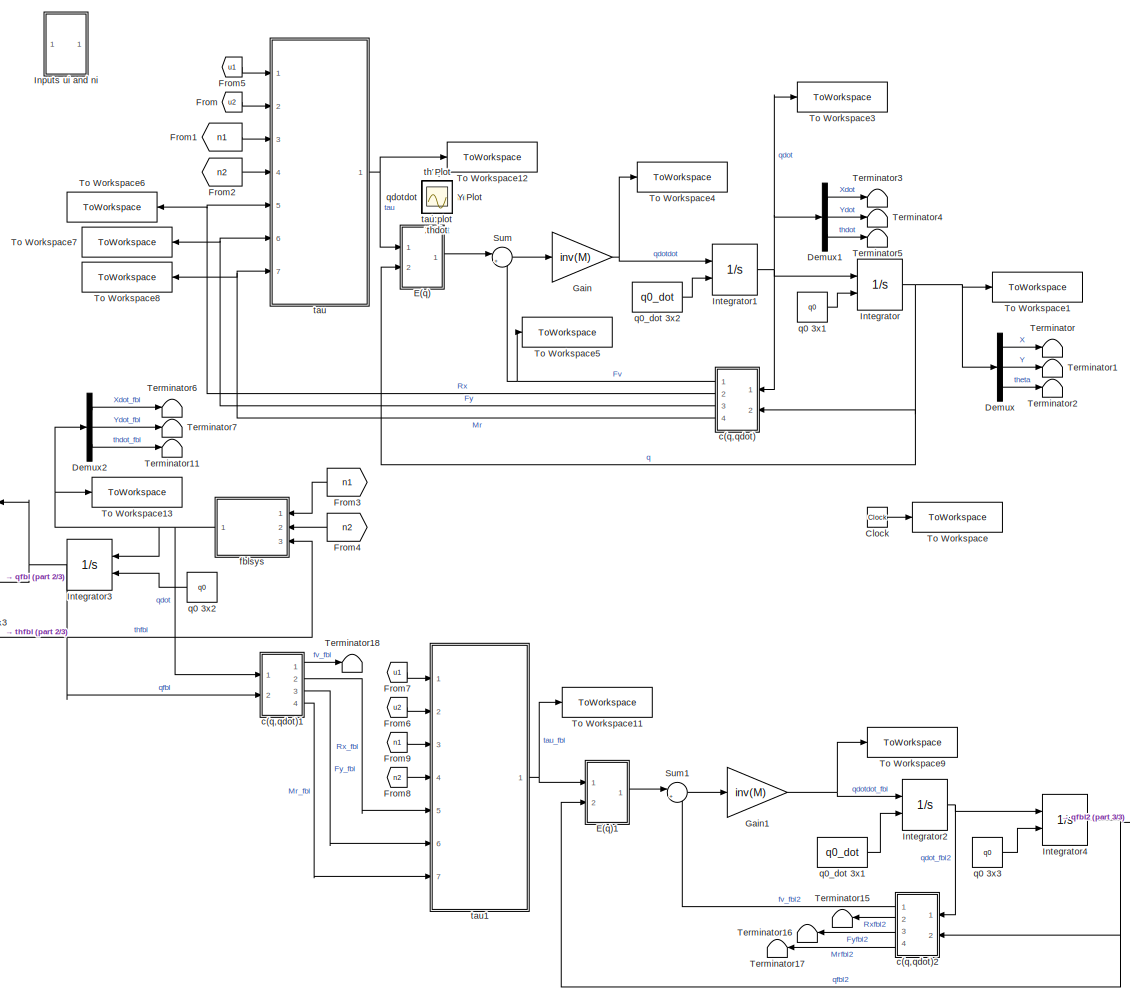
[diagram: root canvas - part 1/3, most of the canvas]
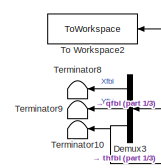
[diagram: root canvas - part 2/3, middle left region]
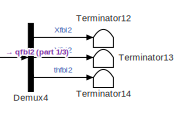
[diagram: root canvas - part 3/3, bottom right region]
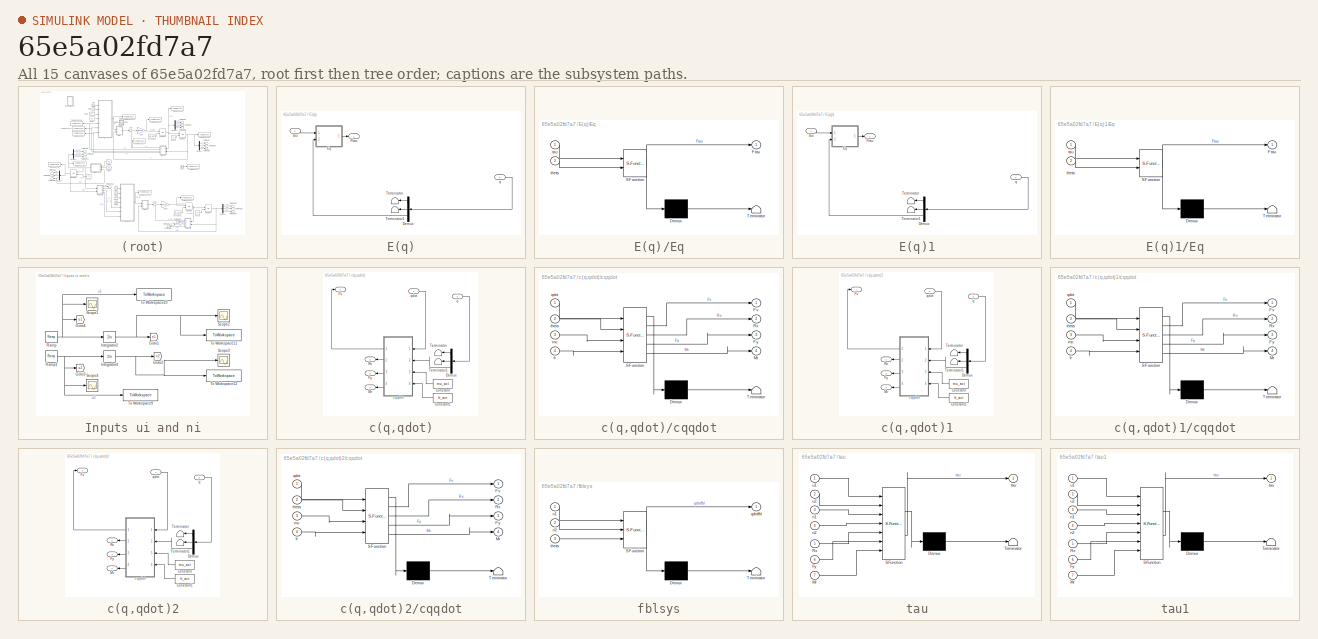
[diagram: thumbnail index - all 15 canvases of the model, root first then tree order]
MODEL slx_65e5a02fd7a7
KIND model
CONFIG AbsTol = auto
CONFIG EnableMultiTasking = off
CONFIG FixedStep = auto
CONFIG MaxStep = auto
CONFIG MinStep = auto
CONFIG RelTol = 1e-6
CONFIG SampleTimeConstraint = Unconstrained
CONFIG SolverName = VariableStepAuto
CONFIG StartTime = 0.0
CONFIG StopTime = 1
BLOCK [Clock] Clock
BLOCK [Demux] Demux
  Outputs = 3
  Ports = [1, 3]
BLOCK [Demux] Demux1
  Outputs = 3
  Ports = [1, 3]
BLOCK [Demux] Demux2
  Outputs = 3
  Ports = [1, 3]
BLOCK [Demux] Demux3
  Outputs = 3
  Ports = [1, 3]
BLOCK [Demux] Demux4
  Outputs = 3
  Ports = [1, 3]
BLOCK [SubSystem] E(q)
  Ports = [2, 1]
  RequestExecContextInheritance = off
BLOCK [Demux] E(q)/Demux
  Outputs = 3
  Ports = [1, 3]
BLOCK [SubSystem] E(q)/Eq
  ErrorFcn = Stateflow.Translate.translate
  PermitHierarchicalResolution = ExplicitOnly
  Ports = [2, 1]
  RequestExecContextInheritance = off
  SFBlockType = MATLAB Function
  TreatAsAtomicUnit = on
BLOCK [Demux] E(q)/Eq/ Demux 
  Outputs = 1
  Ports = [1, 1]
BLOCK [S-Function] E(q)/Eq/ SFunction 
  EnableBusSupport = on
  FunctionName = sf_sfun
  Parameters = r,t
  PortCounts = [2 2]
  Ports = [2, 2]
  SFcnIsStateOwnerBlock = off
  SFunctionDeploymentMode = off
  Tag = Stateflow S-Function 1
BLOCK [Terminator] E(q)/Eq/ Terminator 
BLOCK [Outport] E(q)/Eq/Ftau
BLOCK [Inport] E(q)/Eq/tau
BLOCK [Inport] E(q)/Eq/theta
  Port = 2
BLOCK [Outport] E(q)/Ftau
BLOCK [Terminator] E(q)/Terminator
BLOCK [Terminator] E(q)/Terminator1
BLOCK [Inport] E(q)/q
  Port = 2
BLOCK [Inport] E(q)/tau
BLOCK [SubSystem] E(q)1
  Ports = [2, 1]
  RequestExecContextInheritance = off
BLOCK [Demux] E(q)1/Demux
  Outputs = 3
  Ports = [1, 3]
BLOCK [SubSystem] E(q)1/Eq
  ErrorFcn = Stateflow.Translate.translate
  PermitHierarchicalResolution = ExplicitOnly
  Ports = [2, 1]
  RequestExecContextInheritance = off
  SFBlockType = MATLAB Function
  TreatAsAtomicUnit = on
BLOCK [Demux] E(q)1/Eq/ Demux 
  Outputs = 1
  Ports = [1, 1]
BLOCK [S-Function] E(q)1/Eq/ SFunction 
  EnableBusSupport = on
  FunctionName = sf_sfun
  Parameters = r,t
  PortCounts = [2 2]
  Ports = [2, 2]
  SFcnIsStateOwnerBlock = off
  SFunctionDeploymentMode = off
  Tag = Stateflow S-Function 7
BLOCK [Terminator] E(q)1/Eq/ Terminator 
BLOCK [Outport] E(q)1/Eq/Ftau
BLOCK [Inport] E(q)1/Eq/tau
BLOCK [Inport] E(q)1/Eq/theta
  Port = 2
BLOCK [Outport] E(q)1/Ftau
BLOCK [Terminator] E(q)1/Terminator
BLOCK [Terminator] E(q)1/Terminator1
BLOCK [Inport] E(q)1/q
  Port = 2
BLOCK [Inport] E(q)1/tau
BLOCK [From] From
  GotoTag = u2
  TagVisibility = global
BLOCK [From] From1
  GotoTag = n1
  TagVisibility = global
BLOCK [From] From2
  GotoTag = n2
  TagVisibility = global
BLOCK [From] From3
  GotoTag = n1
  TagVisibility = global
BLOCK [From] From4
  GotoTag = n2
  TagVisibility = global
BLOCK [From] From5
  GotoTag = u1
  TagVisibility = global
BLOCK [From] From6
  GotoTag = u2
  TagVisibility = global
BLOCK [From] From7
  GotoTag = u1
  TagVisibility = global
BLOCK [From] From8
  GotoTag = n2
  TagVisibility = global
BLOCK [From] From9
  GotoTag = n1
  TagVisibility = global
BLOCK [Scope] Fv
  Floating = off
  IOType = viewer
  NumInputPorts = 1
  Ports = []
  ScopeSpecificationString = Simulink.scopes.TimeScopeBlockCfg('CurrentConfiguration', extmgr.ConfigurationSet(extmgr.Configuration('Core','General UI',true),extmgr.Configuration('Core','Source UI',true),extmgr.Configuration('Sources','WiredSimulink',true,'DataLoggingVariableName','ScopeData9'),extmgr.Configuration('Visuals','Time Domain',true,'SerializedDisplays',{struct('MinYLimReal','-563.85052','MaxYLimReal','214.37806','...<+1665ch>
BLOCK [Scope] Fy
  Floating = off
  IOType = viewer
  NumInputPorts = 1
  Ports = []
  ScopeSpecificationString = Simulink.scopes.TimeScopeBlockCfg('CurrentConfiguration', extmgr.ConfigurationSet(extmgr.Configuration('Core','General UI',true),extmgr.Configuration('Core','Source UI',true),extmgr.Configuration('Sources','WiredSimulink',true,'DataLoggingVariableName','ScopeData6'),extmgr.Configuration('Visuals','Time Domain',true,'SerializedDisplays',{struct('MinYLimReal','-220.4179','MaxYLimReal','24.49088','YL...<+1481ch>
BLOCK [Gain] Gain
  Gain = inv(M)
  Multiplication = Matrix(K*u) (u vector)
BLOCK [Gain] Gain1
  Gain = inv(M)
  Multiplication = Matrix(K*u) (u vector)
BLOCK [SubSystem] Inputs ui and ni
  Ports = []
  RequestExecContextInheritance = off
BLOCK [Goto] Inputs ui and ni/Goto1
  GotoTag = n1
  TagVisibility = global
BLOCK [Goto] Inputs ui and ni/Goto2
  GotoTag = n2
  TagVisibility = global
BLOCK [Goto] Inputs ui and ni/Goto3
  GotoTag = u2
  TagVisibility = global
BLOCK [Goto] Inputs ui and ni/Goto4
  GotoTag = u1
  TagVisibility = global
BLOCK [Integrator] Inputs ui and ni/Integrator2
  Ports = [1, 1]
BLOCK [Integrator] Inputs ui and ni/Integrator4
  Ports = [1, 1]
BLOCK [Reference] Inputs ui and ni/Ramp  REF=simulink/Sources/Ramp
  Ports = [0, 1]
  SourceBlock = simulink/Sources/Ramp
  SourceProductBaseCode = SL
  SourceType = Ramp
BLOCK [Reference] Inputs ui and ni/Ramp1  REF=simulink/Sources/Ramp
  Ports = [0, 1]
  SourceBlock = simulink/Sources/Ramp
  SourceProductBaseCode = SL
  SourceType = Ramp
BLOCK [Scope] Inputs ui and ni/Scope1
  Floating = off
  NumInputPorts = 1
  Ports = [1]
  ScopeSpecificationString = Simulink.scopes.TimeScopeBlockCfg('CurrentConfiguration', extmgr.ConfigurationSet(extmgr.Configuration('Core','General UI',true),extmgr.Configuration('Core','Source UI',true),extmgr.Configuration('Sources','WiredSimulink',true,'DataLoggingVariableName','ScopeData3'),extmgr.Configuration('Visuals','Time Domain',true,'SerializedDisplays',{struct('MinYLimReal','-0.05','MaxYLimReal','0.45','YLabelReal...<+1385ch>
BLOCK [Scope] Inputs ui and ni/Scope2
  Floating = off
  NumInputPorts = 1
  Ports = [1]
  ScopeSpecificationString = Simulink.scopes.TimeScopeBlockCfg('CurrentConfiguration', extmgr.ConfigurationSet(extmgr.Configuration('Core','General UI',true),extmgr.Configuration('Core','Source UI',true),extmgr.Configuration('Sources','WiredSimulink',true,'DataLoggingVariableName','ScopeData1'),extmgr.Configuration('Visuals','Time Domain',true,'SerializedDisplays',{struct('MinYLimReal','-0.02','MaxYLimReal','0.18','YLabelReal...<+1394ch>
BLOCK [Scope] Inputs ui and ni/Scope3
  Floating = off
  NumInputPorts = 1
  Ports = [1]
  ScopeSpecificationString = Simulink.scopes.TimeScopeBlockCfg('CurrentConfiguration', extmgr.ConfigurationSet(extmgr.Configuration('Core','General UI',true),extmgr.Configuration('Core','Source UI',true),extmgr.Configuration('Sources','WiredSimulink',true,'DataLoggingVariableName','ScopeData2'),extmgr.Configuration('Visuals','Time Domain',true,'SerializedDisplays',{struct('MinYLimReal','-0.01563','MaxYLimReal','0.14063','YLab...<+1467ch>
BLOCK [Scope] Inputs ui and ni/Scope4
  Floating = off
  NumInputPorts = 1
  Ports = [1]
  ScopeSpecificationString = Simulink.scopes.TimeScopeBlockCfg('CurrentConfiguration', extmgr.ConfigurationSet(extmgr.Configuration('Core','General UI',true),extmgr.Configuration('Core','Source UI',true),extmgr.Configuration('Sources','WiredSimulink',true,'DataLoggingVariableName','ScopeData4'),extmgr.Configuration('Visuals','Time Domain',true,'SerializedDisplays',{struct('MinYLimReal','-0.00781','MaxYLimReal','0.07031','YLab...<+1412ch>
BLOCK [ToWorkspace] Inputs ui and ni/To Workspace10
  FixptAsFi = on
  MaxDataPoints = inf
  Ports = [1]
  SampleTime = -1
  VariableName = u1
BLOCK [ToWorkspace] Inputs ui and ni/To Workspace11
  FixptAsFi = on
  MaxDataPoints = inf
  Ports = [1]
  SampleTime = -1
  VariableName = n1
BLOCK [ToWorkspace] Inputs ui and ni/To Workspace12
  FixptAsFi = on
  MaxDataPoints = inf
  Ports = [1]
  SampleTime = -1
  VariableName = n2
BLOCK [ToWorkspace] Inputs ui and ni/To Workspace9
  FixptAsFi = on
  MaxDataPoints = inf
  Ports = [1]
  SampleTime = -1
  VariableName = u2
BLOCK [Integrator] Integrator
  InitialConditionSource = external
  Ports = [2, 1]
BLOCK [Integrator] Integrator1
  InitialConditionSource = external
  Ports = [2, 1]
BLOCK [Integrator] Integrator2
  InitialConditionSource = external
  Ports = [2, 1]
BLOCK [Integrator] Integrator3
  InitialConditionSource = external
  Ports = [2, 1]
BLOCK [Integrator] Integrator4
  InitialConditionSource = external
  Ports = [2, 1]
BLOCK [Scope] Mr
  Floating = off
  IOType = viewer
  NumInputPorts = 1
  Ports = []
  ScopeSpecificationString = Simulink.scopes.TimeScopeBlockCfg('CurrentConfiguration', extmgr.ConfigurationSet(extmgr.Configuration('Core','General UI',true),extmgr.Configuration('Core','Source UI',true),extmgr.Configuration('Sources','WiredSimulink',true,'DataLoggingVariableName','ScopeData7'),extmgr.Configuration('Visuals','Time Domain',true,'SerializedDisplays',{struct('MinYLimReal','-546.78112','MaxYLimReal','60.75346','Y...<+1485ch>
BLOCK [Scope] Rx
  Floating = off
  IOType = viewer
  NumInputPorts = 1
  Ports = []
  ScopeSpecificationString = Simulink.scopes.TimeScopeBlockCfg('CurrentConfiguration', extmgr.ConfigurationSet(extmgr.Configuration('Core','General UI',true),extmgr.Configuration('Core','Source UI',true),extmgr.Configuration('Sources','WiredSimulink',true,'DataLoggingVariableName','ScopeData5'),extmgr.Configuration('Visuals','Time Domain',true,'SerializedDisplays',{struct('MinYLimReal','-170.694','MaxYLimReal','170.694','YLab...<+1491ch>
BLOCK [Sum] Sum
  Inputs = |+-
  Ports = [2, 1]
BLOCK [Sum] Sum1
  Inputs = |+-
  Ports = [2, 1]
BLOCK [Terminator] Terminator
BLOCK [Terminator] Terminator1
BLOCK [Terminator] Terminator10
BLOCK [Terminator] Terminator11
BLOCK [Terminator] Terminator12
BLOCK [Terminator] Terminator13
BLOCK [Terminator] Terminator14
BLOCK [Terminator] Terminator15
BLOCK [Terminator] Terminator16
BLOCK [Terminator] Terminator17
BLOCK [Terminator] Terminator18
BLOCK [Terminator] Terminator2
BLOCK [Terminator] Terminator3
BLOCK [Terminator] Terminator4
BLOCK [Terminator] Terminator5
BLOCK [Terminator] Terminator6
BLOCK [Terminator] Terminator7
BLOCK [Terminator] Terminator8
BLOCK [Terminator] Terminator9
BLOCK [ToWorkspace] To Workspace
  FixptAsFi = on
  MaxDataPoints = inf
  Ports = [1]
  SampleTime = -1
  VariableName = t
BLOCK [ToWorkspace] To Workspace1
  FixptAsFi = on
  MaxDataPoints = inf
  Ports = [1]
  SampleTime = -1
  VariableName = q
BLOCK [ToWorkspace] To Workspace11
  FixptAsFi = on
  MaxDataPoints = inf
  Ports = [1]
  SampleTime = -1
  VariableName = taufbl
BLOCK [ToWorkspace] To Workspace12
  FixptAsFi = on
  MaxDataPoints = inf
  Ports = [1]
  SampleTime = -1
  VariableName = tau
BLOCK [ToWorkspace] To Workspace13
  FixptAsFi = on
  MaxDataPoints = inf
  Ports = [1]
  SampleTime = -1
  VariableName = qdotfbl
BLOCK [ToWorkspace] To Workspace2
  FixptAsFi = on
  MaxDataPoints = inf
  Ports = [1]
  SampleTime = -1
  VariableName = qfbl
BLOCK [ToWorkspace] To Workspace3
  FixptAsFi = on
  MaxDataPoints = inf
  Ports = [1]
  SampleTime = -1
  VariableName = qdot
BLOCK [ToWorkspace] To Workspace4
  FixptAsFi = on
  MaxDataPoints = inf
  Ports = [1]
  SampleTime = -1
  VariableName = qdotdot
BLOCK [ToWorkspace] To Workspace5
  FixptAsFi = on
  MaxDataPoints = inf
  Ports = [1]
  SampleTime = -1
  VariableName = Fv
BLOCK [ToWorkspace] To Workspace6
  FixptAsFi = on
  MaxDataPoints = inf
  Ports = [1]
  SampleTime = -1
  VariableName = Rx
BLOCK [ToWorkspace] To Workspace7
  FixptAsFi = on
  MaxDataPoints = inf
  Ports = [1]
  SampleTime = -1
  VariableName = Fy
BLOCK [ToWorkspace] To Workspace8
  FixptAsFi = on
  MaxDataPoints = inf
  Ports = [1]
  SampleTime = -1
  VariableName = Mr
BLOCK [ToWorkspace] To Workspace9
  FixptAsFi = on
  MaxDataPoints = inf
  Ports = [1]
  SampleTime = -1
  VariableName = qdotdot_fbl
BLOCK [Scope] X Plot
  Floating = off
  IOType = viewer
  NumInputPorts = 1
  Ports = []
  ScopeSpecificationString = Simulink.scopes.TimeScopeBlockCfg('CurrentConfiguration', extmgr.ConfigurationSet(extmgr.Configuration('Core','General UI',true),extmgr.Configuration('Core','Source UI',true),extmgr.Configuration('Sources','WiredSimulink',true),extmgr.Configuration('Visuals','Time Domain',true,'SerializedDisplays',{struct('MinYLimReal','-0.00988','MaxYLimReal','0.08893','YLabelReal','','MinYLimMag','0.00000','MaxY...<+1451ch>
BLOCK [Scope] Xdot
  Floating = off
  IOType = viewer
  NumInputPorts = 1
  Ports = []
  ScopeSpecificationString = Simulink.scopes.TimeScopeBlockCfg('CurrentConfiguration', extmgr.ConfigurationSet(extmgr.Configuration('Core','General UI',true),extmgr.Configuration('Core','Source UI',true),extmgr.Configuration('Sources','WiredSimulink',true,'DataLoggingVariableName','ScopeData3'),extmgr.Configuration('Visuals','Time Domain',true,'SerializedDisplays',{struct('MinYLimReal','-0.04952','MaxYLimReal','0.44567','YLab...<+1397ch>
BLOCK [Scope] Y Plot
  Floating = off
  IOType = viewer
  NumInputPorts = 1
  Ports = []
  ScopeSpecificationString = Simulink.scopes.TimeScopeBlockCfg('CurrentConfiguration', extmgr.ConfigurationSet(extmgr.Configuration('Core','General UI',true),extmgr.Configuration('Core','Source UI',true),extmgr.Configuration('Sources','WiredSimulink',true,'DataLoggingVariableName','ScopeData1'),extmgr.Configuration('Visuals','Time Domain',true,'SerializedDisplays',{struct('MinYLimReal','-0.01113','MaxYLimReal','0.1002','YLabe...<+1481ch>
BLOCK [Scope] Ydot
  Floating = off
  IOType = viewer
  NumInputPorts = 1
  Ports = []
  ScopeSpecificationString = Simulink.scopes.TimeScopeBlockCfg('CurrentConfiguration', extmgr.ConfigurationSet(extmgr.Configuration('Core','General UI',true),extmgr.Configuration('Core','Source UI',true),extmgr.Configuration('Sources','WiredSimulink',true,'DataLoggingVariableName','ScopeData4'),extmgr.Configuration('Visuals','Time Domain',true,'SerializedDisplays',{struct('MinYLimReal','-0.04034','MaxYLimReal','0.36304','YLab...<+1399ch>
BLOCK [SubSystem] c(q,qdot)
  Ports = [2, 4]
  RequestExecContextInheritance = off
BLOCK [Constant] c(q,qdot)/Constant
  Value = mu_act
BLOCK [Constant] c(q,qdot)/Constant1
  Value = fr_act
BLOCK [Demux] c(q,qdot)/Demux
  Outputs = 3
  Ports = [1, 3]
BLOCK [Outport] c(q,qdot)/Fv
BLOCK [Outport] c(q,qdot)/Fy
  Port = 3
BLOCK [Outport] c(q,qdot)/Mr
  Port = 4
BLOCK [Outport] c(q,qdot)/Rx
  Port = 2
BLOCK [Terminator] c(q,qdot)/Terminator
BLOCK [Terminator] c(q,qdot)/Terminator1
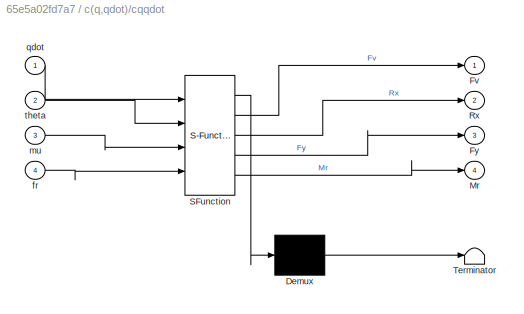
BLOCK [SubSystem] c(q,qdot)/cqqdot
  ErrorFcn = Stateflow.Translate.translate
  PermitHierarchicalResolution = ExplicitOnly
  Ports = [4, 4]
  RequestExecContextInheritance = off
  SFBlockType = MATLAB Function
  TreatAsAtomicUnit = on
BLOCK [Demux] c(q,qdot)/cqqdot/ Demux 
  Outputs = 1
  Ports = [1, 1]
BLOCK [S-Function] c(q,qdot)/cqqdot/ SFunction 
  EnableBusSupport = on
  FunctionName = sf_sfun
  Parameters = a,b,g,m,t
  PortCounts = [4 5]
  Ports = [4, 5]
  SFcnIsStateOwnerBlock = off
  SFunctionDeploymentMode = off
  Tag = Stateflow S-Function 2
BLOCK [Terminator] c(q,qdot)/cqqdot/ Terminator 
BLOCK [Outport] c(q,qdot)/cqqdot/Fv
BLOCK [Outport] c(q,qdot)/cqqdot/Fy
  Port = 3
BLOCK [Outport] c(q,qdot)/cqqdot/Mr
  Port = 4
BLOCK [Outport] c(q,qdot)/cqqdot/Rx
  Port = 2
BLOCK [Inport] c(q,qdot)/cqqdot/fr
  Port = 4
BLOCK [Inport] c(q,qdot)/cqqdot/mu
  Port = 3
BLOCK [Inport] c(q,qdot)/cqqdot/qdot
BLOCK [Inport] c(q,qdot)/cqqdot/theta
  Port = 2
BLOCK [Inport] c(q,qdot)/q
  Port = 2
BLOCK [Inport] c(q,qdot)/qdot
BLOCK [SubSystem] c(q,qdot)1
  Ports = [2, 4]
  RequestExecContextInheritance = off
BLOCK [Constant] c(q,qdot)1/Constant
  Value = mu_act
BLOCK [Constant] c(q,qdot)1/Constant1
  Value = fr_act
BLOCK [Demux] c(q,qdot)1/Demux
  Outputs = 3
  Ports = [1, 3]
BLOCK [Outport] c(q,qdot)1/Fv
BLOCK [Outport] c(q,qdot)1/Fy
  Port = 3
BLOCK [Outport] c(q,qdot)1/Mr
  Port = 4
BLOCK [Outport] c(q,qdot)1/Rx
  Port = 2
BLOCK [Terminator] c(q,qdot)1/Terminator
BLOCK [Terminator] c(q,qdot)1/Terminator1
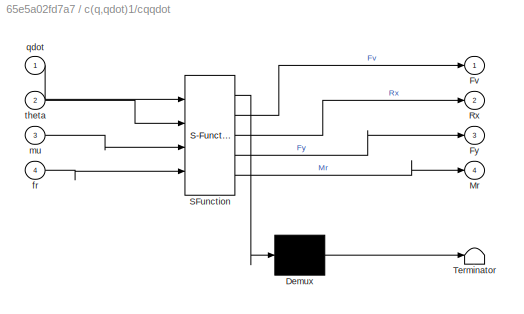
BLOCK [SubSystem] c(q,qdot)1/cqqdot
  ErrorFcn = Stateflow.Translate.translate
  PermitHierarchicalResolution = ExplicitOnly
  Ports = [4, 4]
  RequestExecContextInheritance = off
  SFBlockType = MATLAB Function
  TreatAsAtomicUnit = on
BLOCK [Demux] c(q,qdot)1/cqqdot/ Demux 
  Outputs = 1
  Ports = [1, 1]
BLOCK [S-Function] c(q,qdot)1/cqqdot/ SFunction 
  EnableBusSupport = on
  FunctionName = sf_sfun
  Parameters = a,b,g,m,t
  PortCounts = [4 5]
  Ports = [4, 5]
  SFcnIsStateOwnerBlock = off
  SFunctionDeploymentMode = off
  Tag = Stateflow S-Function 5
BLOCK [Terminator] c(q,qdot)1/cqqdot/ Terminator 
BLOCK [Outport] c(q,qdot)1/cqqdot/Fv
BLOCK [Outport] c(q,qdot)1/cqqdot/Fy
  Port = 3
BLOCK [Outport] c(q,qdot)1/cqqdot/Mr
  Port = 4
BLOCK [Outport] c(q,qdot)1/cqqdot/Rx
  Port = 2
BLOCK [Inport] c(q,qdot)1/cqqdot/fr
  Port = 4
BLOCK [Inport] c(q,qdot)1/cqqdot/mu
  Port = 3
BLOCK [Inport] c(q,qdot)1/cqqdot/qdot
BLOCK [Inport] c(q,qdot)1/cqqdot/theta
  Port = 2
BLOCK [Inport] c(q,qdot)1/q
  Port = 2
BLOCK [Inport] c(q,qdot)1/qdot
BLOCK [SubSystem] c(q,qdot)2
  Ports = [2, 4]
  RequestExecContextInheritance = off
BLOCK [Constant] c(q,qdot)2/Constant
  Value = mu_act
BLOCK [Constant] c(q,qdot)2/Constant1
  Value = fr_act
BLOCK [Demux] c(q,qdot)2/Demux
  Outputs = 3
  Ports = [1, 3]
BLOCK [Outport] c(q,qdot)2/Fv
BLOCK [Outport] c(q,qdot)2/Fy
  Port = 3
BLOCK [Outport] c(q,qdot)2/Mr
  Port = 4
BLOCK [Outport] c(q,qdot)2/Rx
  Port = 2
BLOCK [Terminator] c(q,qdot)2/Terminator
BLOCK [Terminator] c(q,qdot)2/Terminator1
BLOCK [SubSystem] c(q,qdot)2/cqqdot
  ErrorFcn = Stateflow.Translate.translate
  PermitHierarchicalResolution = ExplicitOnly
  Ports = [4, 4]
  RequestExecContextInheritance = off
  SFBlockType = MATLAB Function
  TreatAsAtomicUnit = on
BLOCK [Demux] c(q,qdot)2/cqqdot/ Demux 
  Outputs = 1
  Ports = [1, 1]
BLOCK [S-Function] c(q,qdot)2/cqqdot/ SFunction 
  EnableBusSupport = on
  FunctionName = sf_sfun
  Parameters = a,b,g,m,t
  PortCounts = [4 5]
  Ports = [4, 5]
  SFcnIsStateOwnerBlock = off
  SFunctionDeploymentMode = off
  Tag = Stateflow S-Function 8
BLOCK [Terminator] c(q,qdot)2/cqqdot/ Terminator 
BLOCK [Outport] c(q,qdot)2/cqqdot/Fv
BLOCK [Outport] c(q,qdot)2/cqqdot/Fy
  Port = 3
BLOCK [Outport] c(q,qdot)2/cqqdot/Mr
  Port = 4
BLOCK [Outport] c(q,qdot)2/cqqdot/Rx
  Port = 2
BLOCK [Inport] c(q,qdot)2/cqqdot/fr
  Port = 4
BLOCK [Inport] c(q,qdot)2/cqqdot/mu
  Port = 3
BLOCK [Inport] c(q,qdot)2/cqqdot/qdot
BLOCK [Inport] c(q,qdot)2/cqqdot/theta
  Port = 2
BLOCK [Inport] c(q,qdot)2/q
  Port = 2
BLOCK [Inport] c(q,qdot)2/qdot
BLOCK [SubSystem] fblsys
  ErrorFcn = Stateflow.Translate.translate
  PermitHierarchicalResolution = ExplicitOnly
  Ports = [3, 1]
  RequestExecContextInheritance = off
  SFBlockType = MATLAB Function
  TreatAsAtomicUnit = on
BLOCK [Demux] fblsys/ Demux 
  Outputs = 1
  Ports = [1, 1]
BLOCK [S-Function] fblsys/ SFunction 
  EnableBusSupport = on
  FunctionName = sf_sfun
  Parameters = d0
  PortCounts = [3 2]
  Ports = [3, 2]
  SFcnIsStateOwnerBlock = off
  SFunctionDeploymentMode = off
  Tag = Stateflow S-Function 4
BLOCK [Terminator] fblsys/ Terminator 
BLOCK [Inport] fblsys/n1
BLOCK [Inport] fblsys/n2
  Port = 2
BLOCK [Outport] fblsys/qdotfbl
BLOCK [Inport] fblsys/theta
  Port = 3
BLOCK [Constant] q0 3x1
  Value = q0
BLOCK [Constant] q0 3x2
  Value = q0
BLOCK [Constant] q0 3x3
  Value = q0
BLOCK [Constant] q0_dot 3x1
  Value = q0_dot
BLOCK [Constant] q0_dot 3x2
  Value = q0_dot
BLOCK [Scope] qdotdot
  Floating = off
  IOType = viewer
  NumInputPorts = 1
  Ports = []
  ScopeSpecificationString = Simulink.scopes.TimeScopeBlockCfg('CurrentConfiguration', extmgr.ConfigurationSet(extmgr.Configuration('Core','General UI',true),extmgr.Configuration('Core','Source UI',true),extmgr.Configuration('Sources','WiredSimulink',true,'DataLoggingVariableName','ScopeData10'),extmgr.Configuration('Visuals','Time Domain',true,'SerializedDisplays',{struct('MinYLimReal','-3.84176','MaxYLimReal','2.38247','YLa...<+1624ch>
BLOCK [SubSystem] tau
  ErrorFcn = Stateflow.Translate.translate
  PermitHierarchicalResolution = ExplicitOnly
  Ports = [7, 1]
  RequestExecContextInheritance = off
  SFBlockType = MATLAB Function
  TreatAsAtomicUnit = on
BLOCK [Scope] tau plot
  Floating = off
  IOType = viewer
  NumInputPorts = 1
  Ports = []
  ScopeSpecificationString = Simulink.scopes.TimeScopeBlockCfg('CurrentConfiguration', extmgr.ConfigurationSet(extmgr.Configuration('Core','General UI',true),extmgr.Configuration('Core','Source UI',true),extmgr.Configuration('Sources','WiredSimulink',true,'DataLoggingVariableName','ScopeData8'),extmgr.Configuration('Visuals','Time Domain',true,'SerializedDisplays',{struct('MinYLimReal','-207.32555','MaxYLimReal','229.67381','...<+1569ch>
BLOCK [Demux] tau/ Demux 
  Outputs = 1
  Ports = [1, 1]
BLOCK [S-Function] tau/ SFunction 
  EnableBusSupport = on
  FunctionName = sf_sfun
  Parameters = I,d0,m,r,t
  PortCounts = [7 2]
  Ports = [7, 2]
  SFcnIsStateOwnerBlock = off
  SFunctionDeploymentMode = off
  Tag = Stateflow S-Function 3
BLOCK [Terminator] tau/ Terminator 
BLOCK [Inport] tau/Fy
  Port = 6
BLOCK [Inport] tau/Mr
  Port = 7
BLOCK [Inport] tau/Rx
  Port = 5
BLOCK [Inport] tau/n1
  Port = 3
BLOCK [Inport] tau/n2
  Port = 4
BLOCK [Outport] tau/tau
BLOCK [Inport] tau/u1
BLOCK [Inport] tau/u2
  Port = 2
BLOCK [SubSystem] tau1
  ErrorFcn = Stateflow.Translate.translate
  PermitHierarchicalResolution = ExplicitOnly
  Ports = [7, 1]
  RequestExecContextInheritance = off
  SFBlockType = MATLAB Function
  TreatAsAtomicUnit = on
BLOCK [Demux] tau1/ Demux 
  Outputs = 1
  Ports = [1, 1]
BLOCK [S-Function] tau1/ SFunction 
  EnableBusSupport = on
  FunctionName = sf_sfun
  Parameters = I,d0,m,r,t
  PortCounts = [7 2]
  Ports = [7, 2]
  SFcnIsStateOwnerBlock = off
  SFunctionDeploymentMode = off
  Tag = Stateflow S-Function 6
BLOCK [Terminator] tau1/ Terminator 
BLOCK [Inport] tau1/Fy
  Port = 6
BLOCK [Inport] tau1/Mr
  Port = 7
BLOCK [Inport] tau1/Rx
  Port = 5
BLOCK [Inport] tau1/n1
  Port = 3
BLOCK [Inport] tau1/n2
  Port = 4
BLOCK [Outport] tau1/tau
BLOCK [Inport] tau1/u1
BLOCK [Inport] tau1/u2
  Port = 2
BLOCK [Scope] th Plot
  Floating = off
  IOType = viewer
  NumInputPorts = 1
  Ports = []
  ScopeSpecificationString = Simulink.scopes.TimeScopeBlockCfg('CurrentConfiguration', extmgr.ConfigurationSet(extmgr.Configuration('Core','General UI',true),extmgr.Configuration('Core','Source UI',true),extmgr.Configuration('Sources','WiredSimulink',true,'DataLoggingVariableName','ScopeData2'),extmgr.Configuration('Visuals','Time Domain',true,'SerializedDisplays',{struct('MinYLimReal','-0.53333','MaxYLimReal','0.05926','YLab...<+1468ch>
BLOCK [Scope] thdot
  Floating = off
  IOType = viewer
  NumInputPorts = 1
  Ports = []
  ScopeSpecificationString = Simulink.scopes.TimeScopeBlockCfg('CurrentConfiguration', extmgr.ConfigurationSet(extmgr.Configuration('Core','General UI',true),extmgr.Configuration('Core','Source UI',true),extmgr.Configuration('Sources','WiredSimulink',true,'DataLoggingVariableName','ScopeData5'),extmgr.Configuration('Visuals','Time Domain',true,'SerializedDisplays',{struct('MinYLimReal','-2.00000','MaxYLimReal','0.22222','YLab...<+1376ch>
LINE Clock:1 -> To Workspace:1
LINE Demux1:1 -> Terminator3:1
LINE Demux1:2 -> Terminator4:1
LINE Demux1:3 -> Terminator5:1
LINE Demux2:1 -> Terminator6:1
LINE Demux2:2 -> Terminator7:1
LINE Demux2:3 -> Terminator11:1
LINE Demux3:1 -> Terminator8:1
LINE Demux3:2 -> Terminator9:1
NET Demux3:3 -> Terminator10:1, fblsys:3
LINE Demux4:1 -> Terminator12:1
LINE Demux4:2 -> Terminator13:1
LINE Demux4:3 -> Terminator14:1
LINE Demux:1 -> Terminator:1
LINE Demux:2 -> Terminator1:1
LINE Demux:3 -> Terminator2:1
LINE E(q)/Demux:1 -> E(q)/Terminator:1
LINE E(q)/Demux:2 -> E(q)/Terminator1:1
LINE E(q)/Demux:3 -> E(q)/Eq:2
LINE E(q)/Eq:1 -> E(q)/Ftau:1
LINE E(q)/q:1 -> E(q)/Demux:1
LINE E(q)/tau:1 -> E(q)/Eq:1
LINE E(q)1/Demux:1 -> E(q)1/Terminator:1
LINE E(q)1/Demux:2 -> E(q)1/Terminator1:1
LINE E(q)1/Demux:3 -> E(q)1/Eq:2
LINE E(q)1/Eq:1 -> E(q)1/Ftau:1
LINE E(q)1/q:1 -> E(q)1/Demux:1
LINE E(q)1/tau:1 -> E(q)1/Eq:1
LINE E(q)1:1 -> Sum1:1
LINE E(q):1 -> Sum:1
LINE From1:1 -> tau:3
LINE From2:1 -> tau:4
LINE From3:1 -> fblsys:1
LINE From4:1 -> fblsys:2
LINE From5:1 -> tau:1
LINE From6:1 -> tau1:2
LINE From7:1 -> tau1:1
LINE From8:1 -> tau1:4
LINE From9:1 -> tau1:3
LINE From:1 -> tau:2
NET Gain1:1 -> Integrator2:1, To Workspace9:1
NET Gain:1 -> Integrator1:1, To Workspace4:1
NET Inputs ui and ni/Integrator2:1 -> Inputs ui and ni/Goto1:1, Inputs ui and ni/Scope2:1, Inputs ui and ni/To Workspace11:1
NET Inputs ui and ni/Integrator4:1 -> Inputs ui and ni/Goto2:1, Inputs ui and ni/Scope3:1, Inputs ui and ni/To Workspace12:1
NET Inputs ui and ni/Ramp1:1 -> Inputs ui and ni/Goto3:1, Inputs ui and ni/Integrator4:1, Inputs ui and ni/Scope4:1, Inputs ui and ni/To Workspace9:1
NET Inputs ui and ni/Ramp:1 -> Inputs ui and ni/Goto4:1, Inputs ui and ni/Integrator2:1, Inputs ui and ni/Scope1:1, Inputs ui and ni/To Workspace10:1
NET Integrator1:1 -> Demux1:1, Integrator:1, To Workspace3:1, c(q,qdot):1
NET Integrator2:1 -> Integrator4:1, c(q,qdot)2:1
NET Integrator3:1 -> Demux3:1, To Workspace2:1, c(q,qdot)1:2
NET Integrator4:1 -> Demux4:1, E(q)1:2, c(q,qdot)2:2
NET Integrator:1 -> Demux:1, E(q):2, To Workspace1:1, c(q,qdot):2
LINE Sum1:1 -> Gain1:1
LINE Sum:1 -> Gain:1
LINE c(q,qdot)/Constant1:1 -> c(q,qdot)/cqqdot:4
LINE c(q,qdot)/Constant:1 -> c(q,qdot)/cqqdot:3
LINE c(q,qdot)/Demux:1 -> c(q,qdot)/Terminator:1
LINE c(q,qdot)/Demux:2 -> c(q,qdot)/Terminator1:1
LINE c(q,qdot)/Demux:3 -> c(q,qdot)/cqqdot:2
LINE c(q,qdot)/cqqdot:1 -> c(q,qdot)/Fv:1
LINE c(q,qdot)/cqqdot:2 -> c(q,qdot)/Rx:1
LINE c(q,qdot)/cqqdot:3 -> c(q,qdot)/Fy:1
LINE c(q,qdot)/cqqdot:4 -> c(q,qdot)/Mr:1
LINE c(q,qdot)/q:1 -> c(q,qdot)/Demux:1
LINE c(q,qdot)/qdot:1 -> c(q,qdot)/cqqdot:1
LINE c(q,qdot)1/Constant1:1 -> c(q,qdot)1/cqqdot:4
LINE c(q,qdot)1/Constant:1 -> c(q,qdot)1/cqqdot:3
LINE c(q,qdot)1/Demux:1 -> c(q,qdot)1/Terminator:1
LINE c(q,qdot)1/Demux:2 -> c(q,qdot)1/Terminator1:1
LINE c(q,qdot)1/Demux:3 -> c(q,qdot)1/cqqdot:2
LINE c(q,qdot)1/cqqdot:1 -> c(q,qdot)1/Fv:1
LINE c(q,qdot)1/cqqdot:2 -> c(q,qdot)1/Rx:1
LINE c(q,qdot)1/cqqdot:3 -> c(q,qdot)1/Fy:1
LINE c(q,qdot)1/cqqdot:4 -> c(q,qdot)1/Mr:1
LINE c(q,qdot)1/q:1 -> c(q,qdot)1/Demux:1
LINE c(q,qdot)1/qdot:1 -> c(q,qdot)1/cqqdot:1
LINE c(q,qdot)1:1 -> Terminator18:1
LINE c(q,qdot)1:2 -> tau1:5
LINE c(q,qdot)1:3 -> tau1:6
LINE c(q,qdot)1:4 -> tau1:7
LINE c(q,qdot)2/Constant1:1 -> c(q,qdot)2/cqqdot:4
LINE c(q,qdot)2/Constant:1 -> c(q,qdot)2/cqqdot:3
LINE c(q,qdot)2/Demux:1 -> c(q,qdot)2/Terminator:1
LINE c(q,qdot)2/Demux:2 -> c(q,qdot)2/Terminator1:1
LINE c(q,qdot)2/Demux:3 -> c(q,qdot)2/cqqdot:2
LINE c(q,qdot)2/cqqdot:1 -> c(q,qdot)2/Fv:1
LINE c(q,qdot)2/cqqdot:2 -> c(q,qdot)2/Rx:1
LINE c(q,qdot)2/cqqdot:3 -> c(q,qdot)2/Fy:1
LINE c(q,qdot)2/cqqdot:4 -> c(q,qdot)2/Mr:1
LINE c(q,qdot)2/q:1 -> c(q,qdot)2/Demux:1
LINE c(q,qdot)2/qdot:1 -> c(q,qdot)2/cqqdot:1
LINE c(q,qdot)2:1 -> Sum1:2
LINE c(q,qdot)2:2 -> Terminator15:1
LINE c(q,qdot)2:3 -> Terminator16:1
LINE c(q,qdot)2:4 -> Terminator17:1
NET c(q,qdot):1 -> Sum:2, To Workspace5:1
NET c(q,qdot):2 -> To Workspace6:1, tau:5
NET c(q,qdot):3 -> To Workspace7:1, tau:6
NET c(q,qdot):4 -> To Workspace8:1, tau:7
NET fblsys:1 -> Demux2:1, Integrator3:1, To Workspace13:1, c(q,qdot)1:1
LINE q0 3x1:1 -> Integrator:2
LINE q0 3x2:1 -> Integrator3:2
LINE q0 3x3:1 -> Integrator4:2
LINE q0_dot 3x1:1 -> Integrator2:2
LINE q0_dot 3x2:1 -> Integrator1:2
NET tau1:1 -> E(q)1:1, To Workspace11:1
NET tau:1 -> E(q):1, To Workspace12:1
note: NET lines group one-source signal fan-out (src -> all destinations, sorted); 1:1 wires keep LINE
CHART E(q)1/Eq states=1 transitions=1
  STATE_LABEL 'eML_blk_kernel()'
  STATE_LABEL 'SCRIPT:\nfunction Ftau = Eq(tau,theta,t, r)\nFtau=[cos(theta)/r cos(theta)/r;...\n   sin(theta)/r sin(theta)/r;...\n   -t/r t/r]*tau;\n'
CHART c(q,qdot)2/cqqdot states=1 transitions=1
  STATE_LABEL 'eML_blk_kernel()'
  STATE_LABEL 'SCRIPT:\nfunction [Fv,Rx,Fy,Mr] = cqqdot(qdot,theta,mu,fr,a, b, t, g, m)\nXdot=qdot(1);\nYdot=qdot(2);\nthdot=qdot(3);\n\n%Rth = [cos(theta) -sin(theta);sin(theta) cos(theta)];\n\nxdot =  Xdot*cos(theta)+Ydot*sin(theta);\nydot = -Xdot*sin(theta)+Ydot*cos(theta);\n\nx1dot = xdot-t*thdot;   \nx2dot = xdot+t*thdot;\ny1dot = ydot+a*thdot;\ny3dot = ydot-b*thdot;\n\n% Rx = fr*m*g*0.5*(sign(round(x1dot))+sign(round(x2do...<+484ch>'
CHART E(q)/Eq states=1 transitions=1
  STATE_LABEL 'eML_blk_kernel()'
  STATE_LABEL 'SCRIPT:\nfunction Ftau = Eq(tau,theta,t, r)\nFtau=[cos(theta)/r cos(theta)/r;...\n   sin(theta)/r sin(theta)/r;...\n   -t/r t/r]*tau;\n'
CHART c(q,qdot)/cqqdot states=1 transitions=1
  STATE_LABEL 'eML_blk_kernel()'
  STATE_LABEL 'SCRIPT:\nfunction [Fv,Rx,Fy,Mr] = cqqdot(qdot,theta,mu,fr,a, b, t, g, m)\nXdot=qdot(1);\nYdot=qdot(2);\nthdot=qdot(3);\n\n%Rth = [cos(theta) -sin(theta);sin(theta) cos(theta)];\n\nxdot =  Xdot*cos(theta)+Ydot*sin(theta);\nydot = -Xdot*sin(theta)+Ydot*cos(theta);\n\nx1dot = xdot-t*thdot;   \nx2dot = xdot+t*thdot;\ny1dot = ydot+a*thdot;\ny3dot = ydot-b*thdot;\n\nRx = fr*m*g*0.5*(sign(x1dot)+sign(x2dot));\nFy = mu*m*...<+218ch>'
CHART tau states=1 transitions=1
  STATE_LABEL 'eML_blk_kernel()'
  STATE_LABEL 'SCRIPT:\nfunction tau = FBL(u1,u2,n1,n2,Rx,Fy,Mr,t, r,d0, m, I)\ntau=[r*0.5*(m*u1+m*n2*n2/d0+Rx)+(r*d0*0.5/t)*((m+I/(d0^2))*u2-m*n1*n2/d0...\n    +Fy-Mr/d0);\n     r*0.5*(m*u1+m*n2*n2/d0+Rx)-(r*d0*0.5/t)*((m+I/(d0^2))*u2-m*n1*n2/d0...\n    +Fy-Mr/d0)];\n'
CHART fblsys states=1 transitions=1
  STATE_LABEL 'eML_blk_kernel()'
  STATE_LABEL 'SCRIPT:\nfunction qdotfbl = fblsys(n1, n2,theta,d0)\nqdotfbl=[cos(theta)*n1-sin(theta)*n2;...\n         sin(theta)*n1+cos(theta)*n2;...\n         -n2/d0];\n'
CHART c(q,qdot)1/cqqdot states=1 transitions=1
  STATE_LABEL 'eML_blk_kernel()'
  STATE_LABEL 'SCRIPT:\nfunction [Fv,Rx,Fy,Mr] = cqqdot(qdot,theta,mu,fr,a, b, t, g, m)\nXdot=qdot(1);\nYdot=qdot(2);\nthdot=qdot(3);\n\n%Rth = [cos(theta) -sin(theta);sin(theta) cos(theta)];\n\nxdot =  Xdot*cos(theta)+Ydot*sin(theta);\nydot = -Xdot*sin(theta)+Ydot*cos(theta);\n\nx1dot = xdot-t*thdot;   \nx2dot = xdot+t*thdot;\ny1dot = ydot+a*thdot;\ny3dot = ydot-b*thdot;\n\nRx = fr*m*g*0.5*(sign(x1dot)+sign(x2dot));\nFy = mu*m*...<+218ch>'
CHART tau1 states=1 transitions=1
  STATE_LABEL 'eML_blk_kernel()'
  STATE_LABEL 'SCRIPT:\nfunction tau = FBL(u1,u2,n1,n2,Rx,Fy,Mr,t, r,d0, m, I)\ntau=[r*0.5*(m*u1+m*n2*n2/d0+Rx)+(r*d0*0.5/t)*((m+I/(d0^2))*u2-m*n1*n2/d0...\n    +Fy-Mr/d0);\n     r*0.5*(m*u1+m*n2*n2/d0+Rx)-(r*d0*0.5/t)*((m+I/(d0^2))*u2-m*n1*n2/d0...\n    +Fy-Mr/d0)];\n'
CHART  states=0 transitions=0
CHART  states=0 transitions=0
CHART  states=0 transitions=0
CHART  states=0 transitions=0
CHART  states=0 transitions=0
CHART  states=0 transitions=0
CHART  states=0 transitions=0
CHART  states=0 transitions=0
